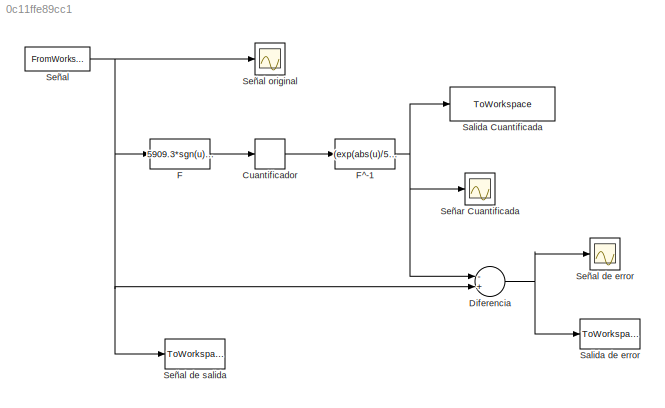
MODEL slx_0c11ffe89cc1
KIND model
BLOCK [Quantizer] Cuantificador
  QuantizationInterval = 256
BLOCK [Sum] Diferencia
  InputSameDT = off
  Inputs = -+
  OutDataTypeStr = Inherit: Inherit via internal rule
  Ports = [2, 1]
  SaturateOnIntegerOverflow = off
BLOCK [Fcn] F
  Expr = 5909.3*sgn(u)*log(1+0.0078*abs(u))
BLOCK [Fcn] F^-1
  Expr = (exp(abs(u)/5909.3)-1)/0.0078*sgn(u)
BLOCK [ToWorkspace] Salida Cuantificada
  MaxDataPoints = inf
  Ports = [1]
  SampleTime = -1
  VariableName = SignalCuantificada
BLOCK [ToWorkspace] Salida de error
  MaxDataPoints = inf
  Ports = [1]
  SampleTime = -1
  VariableName = Error
BLOCK [FromWorkspace] Señal
  SampleTime = 1/8000
  VariableName = ejercicio3
  ZeroCross = on
BLOCK [Scope] Señal de error
  DataFormat = StructureWithTime
  Floating = off
  NumInputPorts = 1
  Ports = [1]
  SampleTime = 0
  ShowLegends = off
  YMax = 150
  YMin = -150
BLOCK [ToWorkspace] Señal de salida
  MaxDataPoints = inf
  Ports = [1]
  SampleTime = -1
  VariableName = Signal
BLOCK [Scope] Señal original
  DataFormat = StructureWithTime
  Floating = off
  NumInputPorts = 1
  Ports = [1]
  SampleTime = 0
  SaveName = ScopeData2
  ShowLegends = off
  YMax = 15000
  YMin = -10000
BLOCK [Scope] Señar Cuantificada
  DataFormat = StructureWithTime
  Floating = off
  NumInputPorts = 1
  Ports = [1]
  SampleTime = 0
  SaveName = ScopeData1
  ShowLegends = off
  YMax = 15000
  YMin = -10000
LINE Cuantificador:1 -> F^-1:1
NET Diferencia:1 -> Salida de error:1, Señal de error:1
LINE F:1 -> Cuantificador:1
NET F^-1:1 -> Diferencia:1, Salida Cuantificada:1, Señar Cuantificada:1
NET Señal:1 -> Diferencia:2, F:1, Señal de salida:1, Señal original:1
note: NET lines group one-source signal fan-out (src -> all destinations, sorted); 1:1 wires keep LINE
